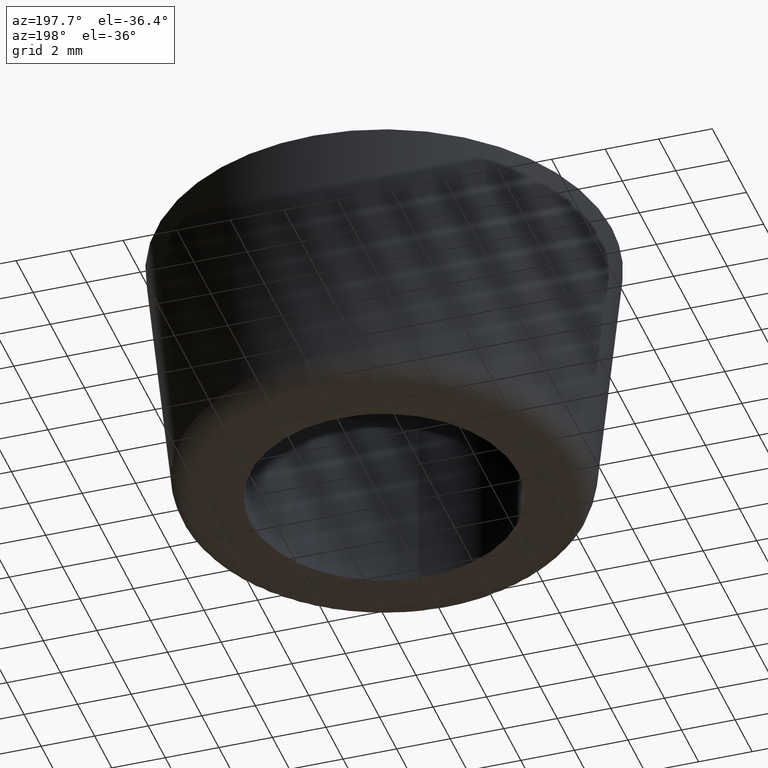
[diagram: clean part render]
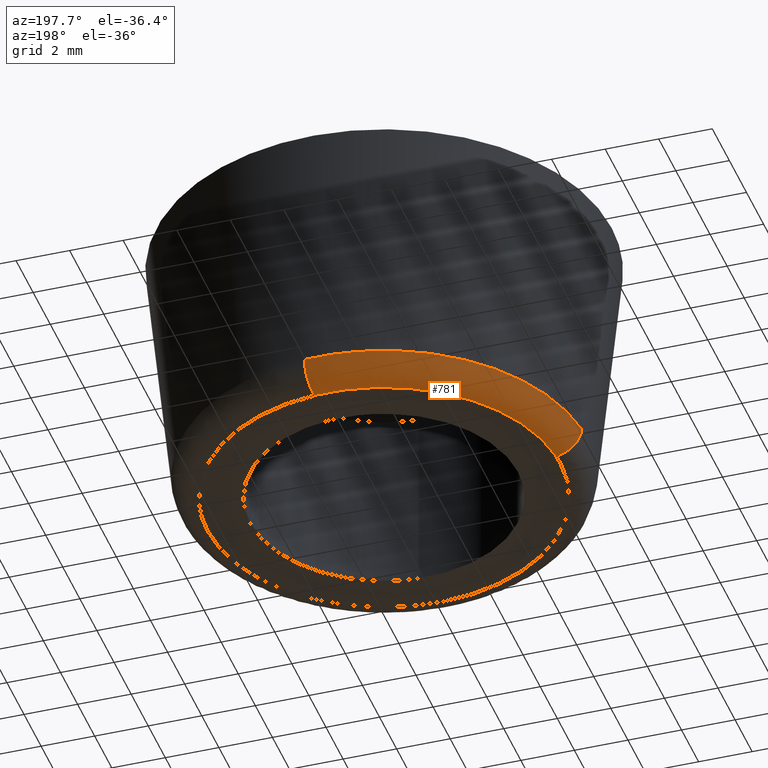
[diagram: same view with one face highlighted and labeled with its STEP entity id]
A machine part, auxiliary view. The second image highlights one B-rep face of the part: STEP entity #781.
In plain terms, the highlighted face is a freeform B-spline surface patch.
Its self-contained STEP definition (entity closure, byte-faithful):
#212=CARTESIAN_POINT('',(0.571734188844041,7.568485494738575,0.900496015726226));
#213=VERTEX_POINT('',#212);
#227=CARTESIAN_POINT('',(-7.568485494738667,0.571734188842882,0.900496015726277));
#228=VERTEX_POINT('',#227);
#229=CARTESIAN_POINT('',(-7.568485494738667,0.571734188842882,0.900496015726277));
#230=CARTESIAN_POINT('',(-7.038312327048996,7.590050000000000,0.900495999999976));
#231=CARTESIAN_POINT('',(0.0,7.590050000000000,0.900495999999976));
#232=CARTESIAN_POINT('',(0.286273776310240,7.590050000000001,0.900495999999976));
#233=CARTESIAN_POINT('',(0.571734188844041,7.568485494738575,0.900496015726226));
#241=(BOUNDED_CURVE()B_SPLINE_CURVE(2,(#229,#230,#231,#232,#233),.UNSPECIFIED.,.F.,.U.)B_SPLINE_CURVE_WITH_KNOTS((3,2,3),(0.013129840736966,0.250000000000000,0.263129840737018),.UNSPECIFIED.)CURVE()GEOMETRIC_REPRESENTATION_ITEM()RATIONAL_B_SPLINE_CURVE((0.970850634528658,0.722489346450379,1.0,0.984617434736107,0.970850634528548))REPRESENTATION_ITEM(''));
#242=EDGE_CURVE('',#228,#213,#241,.T.);
#661=CARTESIAN_POINT('',(0.496781186438953,6.576274913490228,1.399088E-016));
#662=VERTEX_POINT('',#661);
#678=CARTESIAN_POINT('',(0.571734188844041,7.568485494738575,0.900496015726226));
#679=CARTESIAN_POINT('',(0.564950991299540,7.478691087948655,6.664405E-010));
#680=CARTESIAN_POINT('',(0.496781186438953,6.576274913490228,1.399088E-016));
#688=(BOUNDED_CURVE()B_SPLINE_CURVE(2,(#678,#679,#680),.UNSPECIFIED.,.F.,.U.)B_SPLINE_CURVE_WITH_KNOTS((3,3),(-1.710023723958817,-0.277482477256408),.UNSPECIFIED.)CURVE()GEOMETRIC_REPRESENTATION_ITEM()RATIONAL_B_SPLINE_CURVE((0.888708185272026,0.660422533735787,0.892725170760684))REPRESENTATION_ITEM(''));
#689=EDGE_CURVE('',#213,#662,#688,.T.);
#696=CARTESIAN_POINT('',(-6.576274913255141,0.496781186397940,1.554542E-016));
#697=VERTEX_POINT('',#696);
#698=CARTESIAN_POINT('',(-7.568485494738667,0.571734188842882,0.900496015726277));
#699=CARTESIAN_POINT('',(-7.478691087905882,0.564950991296310,2.365542E-010));
#700=CARTESIAN_POINT('',(-6.576274913255141,0.496781186397940,1.554542E-016));
#708=(BOUNDED_CURVE()B_SPLINE_CURVE(2,(#698,#699,#700),.UNSPECIFIED.,.F.,.U.)B_SPLINE_CURVE_WITH_KNOTS((3,3),(-1.710023723958928,-0.277482476748199),.UNSPECIFIED.)CURVE()GEOMETRIC_REPRESENTATION_ITEM()RATIONAL_B_SPLINE_CURVE((0.888708185272061,0.660422533654782,0.892725170925507))REPRESENTATION_ITEM(''));
#709=EDGE_CURVE('',#228,#697,#708,.T.);
#744=CARTESIAN_POINT('',(-7.572879016423417,0.572066081752470,0.966646652066589));
#745=CARTESIAN_POINT('',(-7.000812934670947,8.144945098175887,0.966646652066589));
#746=CARTESIAN_POINT('',(0.572066081752469,7.572879016423418,0.966646652066589));
#747=CARTESIAN_POINT('',(-7.538516726555496,0.569470305366481,-0.065963984307110));
#748=CARTESIAN_POINT('',(-6.969046421189016,8.107987031921976,-0.065963984307110));
#749=CARTESIAN_POINT('',(0.569470305366480,7.538516726555496,-0.065963984307110));
#750=CARTESIAN_POINT('',(-6.510509733638854,0.491813190922084,0.002177240093097));
#751=CARTESIAN_POINT('',(-6.018696542716771,7.002322924560937,0.002177240093097));
#752=CARTESIAN_POINT('',(0.491813190922084,6.510509733638854,0.002177240093097));
#760=(BOUNDED_SURFACE()B_SPLINE_SURFACE(2,2,((#744,#747,#750),(#745,#748,#751),(#746,#749,#752)),.UNSPECIFIED.,.F.,.F.,.U.)B_SPLINE_SURFACE_WITH_KNOTS((3,3),(3,3),(0.0,12.582906070410180),(0.0,1.695223112688716),.UNSPECIFIED.)GEOMETRIC_REPRESENTATION_ITEM()RATIONAL_B_SPLINE_SURFACE(((0.912663107449853,0.636266938542525,0.917081439751294),(0.645350272216578,0.449908666888224,0.648474504948462),(0.912663107449853,0.636266938542525,0.917081439751294)))REPRESENTATION_ITEM('')SURFACE());
#761=CARTESIAN_POINT('',(-6.576274913255141,0.496781186397940,1.554542E-016));
#762=CARTESIAN_POINT('',(-6.115605859818069,6.595011999999998,0.0));
#763=CARTESIAN_POINT('',(0.0,6.595012000000000,0.0));
#764=CARTESIAN_POINT('',(0.248743946402770,6.595012000000000,0.0));
#765=CARTESIAN_POINT('',(0.496781186438953,6.576274913490228,1.399088E-016));
#773=(BOUNDED_CURVE()B_SPLINE_CURVE(2,(#761,#762,#763,#764,#765),.UNSPECIFIED.,.F.,.U.)B_SPLINE_CURVE_WITH_KNOTS((3,2,3),(0.013129840738160,0.250000000000000,0.263129840739367),.UNSPECIFIED.)CURVE()GEOMETRIC_REPRESENTATION_ITEM()RATIONAL_B_SPLINE_CURVE((0.970850634526154,0.722489346451778,1.0,0.984617434733356,0.970850634523623))REPRESENTATION_ITEM(''));
#774=EDGE_CURVE('',#697,#662,#773,.T.);
#775=ORIENTED_EDGE('',*,*,#774,.F.);
#776=ORIENTED_EDGE('',*,*,#709,.F.);
#777=ORIENTED_EDGE('',*,*,#242,.T.);
#778=ORIENTED_EDGE('',*,*,#689,.T.);
#779=EDGE_LOOP('',(#775,#776,#777,#778));
#780=FACE_OUTER_BOUND('',#779,.T.);
#781=ADVANCED_FACE('',(#780),#760,.T.);